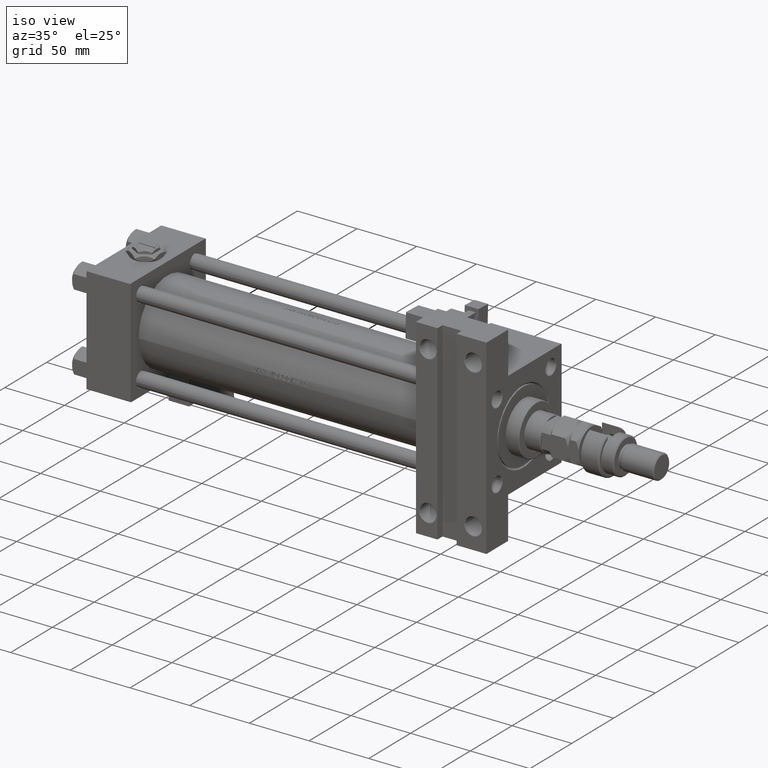
[diagram: clean part render]
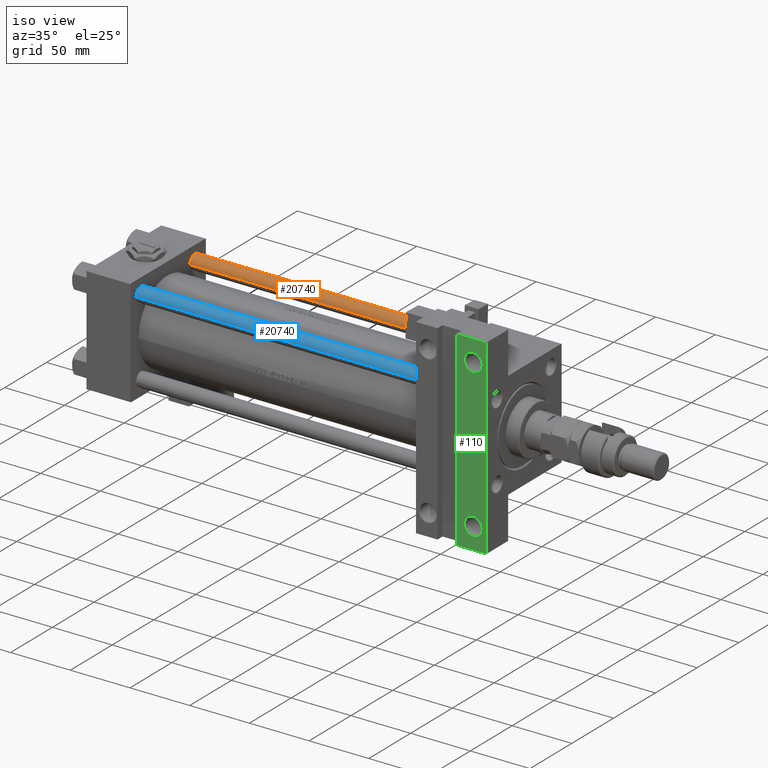
[diagram: same view with three faces highlighted in distinct colors, each labeled with its STEP entity id]
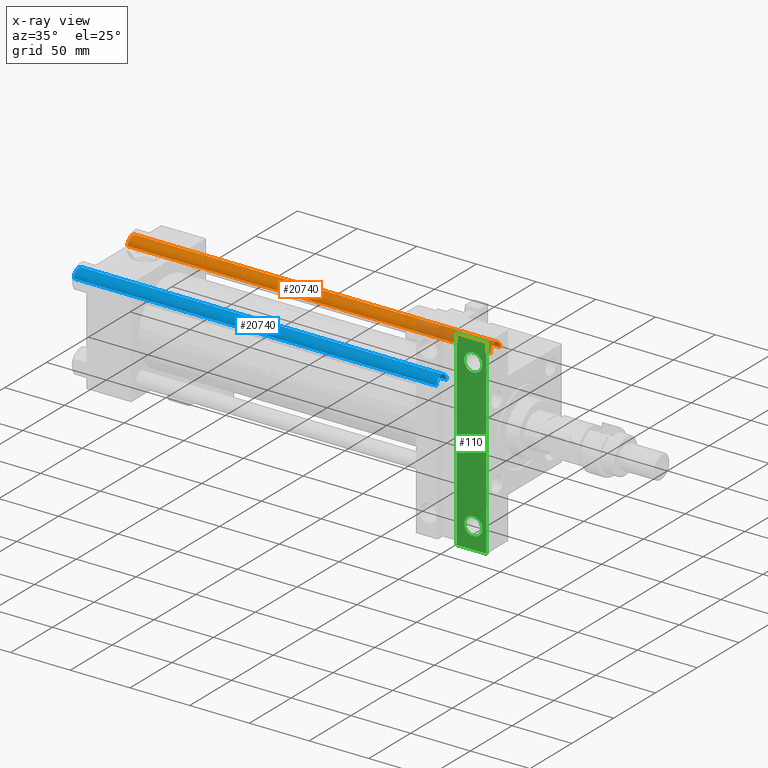
[diagram: x-ray of the same camera — body ghosted, the three highlighted faces saturated]
A machine part, iso view with three faces highlighted in distinct colors.
The next image is the same camera in x-ray (body ghosted, the three faces saturated) — at least one of them is partly hidden behind the body in this view.
Their STEP definitions:

[orange] entity #20740 — the highlighted cylindrical surface (edge-blend (fillet) strip) has radius 6 mm, axis along (1, -0, 0).
#1722 = LINE ( 'NONE', #40596, #24269 ) ;
#2200 = ORIENTED_EDGE ( 'NONE', *, *, #39909, .T. ) ;
#7067 = VERTEX_POINT ( 'NONE', #46702 ) ;
#8290 = LINE ( 'NONE', #11888, #33200 ) ;
#8333 = FACE_OUTER_BOUND ( 'NONE', #25687, .T. ) ;
#11888 = CARTESIAN_POINT ( 'NONE',  ( 6.000000000000000888, 7.347880794884120722E-16, 305.0000000000000000 ) ) ;
#12722 = CARTESIAN_POINT ( 'NONE',  ( -6.000000000000000888, 0.000000000000000000, 304.5000000000000000 ) ) ;
#13773 = DIRECTION ( 'NONE',  ( -1.000000000000000000, 0.000000000000000000, 0.000000000000000000 ) ) ;
#14417 = VERTEX_POINT ( 'NONE', #33110 ) ;
#18293 = EDGE_CURVE ( 'NONE', #24531, #7067, #1722, .T. ) ;
#20187 = DIRECTION ( 'NONE',  ( -0.000000000000000000, -0.000000000000000000, -1.000000000000000000 ) ) ;
#20740 = ADVANCED_FACE ( 'NONE', ( #8333 ), #25179, .T. ) ;
#22438 = EDGE_CURVE ( 'NONE', #37914, #14417, #8290, .T. ) ;
#23485 = AXIS2_PLACEMENT_3D ( 'NONE', #51491, #34738, #13773 ) ;
#23966 = DIRECTION ( 'NONE',  ( 1.000000000000000000, 0.000000000000000000, 0.000000000000000000 ) ) ;
#24269 = VECTOR ( 'NONE', #52143, 1000.000000000000000 ) ;
#24531 = VERTEX_POINT ( 'NONE', #12722 ) ;
#25179 = CYLINDRICAL_SURFACE ( 'NONE', #23485, 6.000000000000000888 ) ;
#25687 = EDGE_LOOP ( 'NONE', ( #42523, #2200, #43676, #36733 ) ) ;
#27273 = DIRECTION ( 'NONE',  ( -0.000000000000000000, -0.000000000000000000, 1.000000000000000000 ) ) ;
#29643 = EDGE_CURVE ( 'NONE', #7067, #14417, #40584, .T. ) ;
#33110 = CARTESIAN_POINT ( 'NONE',  ( 6.000000000000000888, 7.347880794884120722E-16, 0.5000000000000004441 ) ) ;
#33200 = VECTOR ( 'NONE', #20187, 1000.000000000000000 ) ;
#34657 = CIRCLE ( 'NONE', #36435, 6.000000000000000888 ) ;
#34738 = DIRECTION ( 'NONE',  ( -0.000000000000000000, -0.000000000000000000, -1.000000000000000000 ) ) ;
#36435 = AXIS2_PLACEMENT_3D ( 'NONE', #47934, #53132, #23966 ) ;
#36733 = ORIENTED_EDGE ( 'NONE', *, *, #29643, .T. ) ;
#37745 = CARTESIAN_POINT ( 'NONE',  ( 6.000000000000000888, 7.347880794884120722E-16, 304.5000000000000000 ) ) ;
#37914 = VERTEX_POINT ( 'NONE', #37745 ) ;
#39909 = EDGE_CURVE ( 'NONE', #37914, #24531, #34657, .T. ) ;
#40584 = CIRCLE ( 'NONE', #41436, 6.000000000000000888 ) ;
#40596 = CARTESIAN_POINT ( 'NONE',  ( -6.000000000000000888, 0.000000000000000000, 305.0000000000000000 ) ) ;
#41436 = AXIS2_PLACEMENT_3D ( 'NONE', #52847, #27273, #48191 ) ;
#42523 = ORIENTED_EDGE ( 'NONE', *, *, #22438, .F. ) ;
#43676 = ORIENTED_EDGE ( 'NONE', *, *, #18293, .T. ) ;
#46702 = CARTESIAN_POINT ( 'NONE',  ( -6.000000000000000888, 0.000000000000000000, 0.5000000000000004441 ) ) ;
#47934 = CARTESIAN_POINT ( 'NONE',  ( 0.000000000000000000, 0.000000000000000000, 304.5000000000000000 ) ) ;
#48191 = DIRECTION ( 'NONE',  ( 1.000000000000000000, 0.000000000000000000, 0.000000000000000000 ) ) ;
#51491 = CARTESIAN_POINT ( 'NONE',  ( 0.000000000000000000, 0.000000000000000000, 305.0000000000000000 ) ) ;
#52143 = DIRECTION ( 'NONE',  ( -0.000000000000000000, -0.000000000000000000, -1.000000000000000000 ) ) ;
#52847 = CARTESIAN_POINT ( 'NONE',  ( 0.000000000000000000, 0.000000000000000000, 0.5000000000000004441 ) ) ;
#53132 = DIRECTION ( 'NONE',  ( 0.000000000000000000, 0.000000000000000000, -1.000000000000000000 ) ) ;

[blue] entity #20740 — the highlighted cylindrical surface (edge-blend (fillet) strip) has radius 6 mm, axis along (-1, 0, 0).
#1722 = LINE ( 'NONE', #40596, #24269 ) ;
#2200 = ORIENTED_EDGE ( 'NONE', *, *, #39909, .T. ) ;
#7067 = VERTEX_POINT ( 'NONE', #46702 ) ;
#8290 = LINE ( 'NONE', #11888, #33200 ) ;
#8333 = FACE_OUTER_BOUND ( 'NONE', #25687, .T. ) ;
#11888 = CARTESIAN_POINT ( 'NONE',  ( 6.000000000000000888, 7.347880794884120722E-16, 305.0000000000000000 ) ) ;
#12722 = CARTESIAN_POINT ( 'NONE',  ( -6.000000000000000888, 0.000000000000000000, 304.5000000000000000 ) ) ;
#13773 = DIRECTION ( 'NONE',  ( -1.000000000000000000, 0.000000000000000000, 0.000000000000000000 ) ) ;
#14417 = VERTEX_POINT ( 'NONE', #33110 ) ;
#18293 = EDGE_CURVE ( 'NONE', #24531, #7067, #1722, .T. ) ;
#20187 = DIRECTION ( 'NONE',  ( -0.000000000000000000, -0.000000000000000000, -1.000000000000000000 ) ) ;
#20740 = ADVANCED_FACE ( 'NONE', ( #8333 ), #25179, .T. ) ;
#22438 = EDGE_CURVE ( 'NONE', #37914, #14417, #8290, .T. ) ;
#23485 = AXIS2_PLACEMENT_3D ( 'NONE', #51491, #34738, #13773 ) ;
#23966 = DIRECTION ( 'NONE',  ( 1.000000000000000000, 0.000000000000000000, 0.000000000000000000 ) ) ;
#24269 = VECTOR ( 'NONE', #52143, 1000.000000000000000 ) ;
#24531 = VERTEX_POINT ( 'NONE', #12722 ) ;
#25179 = CYLINDRICAL_SURFACE ( 'NONE', #23485, 6.000000000000000888 ) ;
#25687 = EDGE_LOOP ( 'NONE', ( #42523, #2200, #43676, #36733 ) ) ;
#27273 = DIRECTION ( 'NONE',  ( -0.000000000000000000, -0.000000000000000000, 1.000000000000000000 ) ) ;
#29643 = EDGE_CURVE ( 'NONE', #7067, #14417, #40584, .T. ) ;
#33110 = CARTESIAN_POINT ( 'NONE',  ( 6.000000000000000888, 7.347880794884120722E-16, 0.5000000000000004441 ) ) ;
#33200 = VECTOR ( 'NONE', #20187, 1000.000000000000000 ) ;
#34657 = CIRCLE ( 'NONE', #36435, 6.000000000000000888 ) ;
#34738 = DIRECTION ( 'NONE',  ( -0.000000000000000000, -0.000000000000000000, -1.000000000000000000 ) ) ;
#36435 = AXIS2_PLACEMENT_3D ( 'NONE', #47934, #53132, #23966 ) ;
#36733 = ORIENTED_EDGE ( 'NONE', *, *, #29643, .T. ) ;
#37745 = CARTESIAN_POINT ( 'NONE',  ( 6.000000000000000888, 7.347880794884120722E-16, 304.5000000000000000 ) ) ;
#37914 = VERTEX_POINT ( 'NONE', #37745 ) ;
#39909 = EDGE_CURVE ( 'NONE', #37914, #24531, #34657, .T. ) ;
#40584 = CIRCLE ( 'NONE', #41436, 6.000000000000000888 ) ;
#40596 = CARTESIAN_POINT ( 'NONE',  ( -6.000000000000000888, 0.000000000000000000, 305.0000000000000000 ) ) ;
#41436 = AXIS2_PLACEMENT_3D ( 'NONE', #52847, #27273, #48191 ) ;
#42523 = ORIENTED_EDGE ( 'NONE', *, *, #22438, .F. ) ;
#43676 = ORIENTED_EDGE ( 'NONE', *, *, #18293, .T. ) ;
#46702 = CARTESIAN_POINT ( 'NONE',  ( -6.000000000000000888, 0.000000000000000000, 0.5000000000000004441 ) ) ;
#47934 = CARTESIAN_POINT ( 'NONE',  ( 0.000000000000000000, 0.000000000000000000, 304.5000000000000000 ) ) ;
#48191 = DIRECTION ( 'NONE',  ( 1.000000000000000000, 0.000000000000000000, 0.000000000000000000 ) ) ;
#51491 = CARTESIAN_POINT ( 'NONE',  ( 0.000000000000000000, 0.000000000000000000, 305.0000000000000000 ) ) ;
#52143 = DIRECTION ( 'NONE',  ( -0.000000000000000000, -0.000000000000000000, -1.000000000000000000 ) ) ;
#52847 = CARTESIAN_POINT ( 'NONE',  ( 0.000000000000000000, 0.000000000000000000, 0.5000000000000004441 ) ) ;
#53132 = DIRECTION ( 'NONE',  ( 0.000000000000000000, 0.000000000000000000, -1.000000000000000000 ) ) ;

[green] entity #110 — the highlighted planar face has unit normal (0, -1, 0).
#110 = ADVANCED_FACE ( 'NONE', ( #44805, #15595, #14772 ), #32438, .T. ) ;
#350 = ORIENTED_EDGE ( 'NONE', *, *, #19536, .T. ) ;
#466 = CARTESIAN_POINT ( 'NONE',  ( 309.9999999999999432, 79.99999999999995737, -45.00000000000000000 ) ) ;
#855 = CARTESIAN_POINT ( 'NONE',  ( 323.9999999999999432, 62.00000000000000000, -45.00000000000000000 ) ) ;
#954 = CARTESIAN_POINT ( 'NONE',  ( 309.9999999999999432, -79.99999999999995737, -45.00000000000000000 ) ) ;
#1001 = LINE ( 'NONE', #47846, #11646 ) ;
#1770 = VERTEX_POINT ( 'NONE', #5295 ) ;
#2232 = CIRCLE ( 'NONE', #12826, 7.499499999999992284 ) ;
#2350 = DIRECTION ( 'NONE',  ( 0.000000000000000000, 0.000000000000000000, -1.000000000000000000 ) ) ;
#2447 = ORIENTED_EDGE ( 'NONE', *, *, #6817, .T. ) ;
#3354 = DIRECTION ( 'NONE',  ( -0.000000000000000000, -0.000000000000000000, 1.000000000000000000 ) ) ;
#3888 = CARTESIAN_POINT ( 'NONE',  ( 323.9999999999999432, -62.00000000000000000, -45.00000000000000000 ) ) ;
#5295 = CARTESIAN_POINT ( 'NONE',  ( 309.9999999999999432, -79.99999999999995737, -45.00000000000000000 ) ) ;
#5531 = VERTEX_POINT ( 'NONE', #466 ) ;
#6817 = EDGE_CURVE ( 'NONE', #5531, #54052, #1001, .T. ) ;
#6878 = LINE ( 'NONE', #52616, #32930 ) ;
#7608 = EDGE_LOOP ( 'NONE', ( #35206, #2447, #17341, #10852 ) ) ;
#8269 = AXIS2_PLACEMENT_3D ( 'NONE', #23617, #2350, #49206 ) ;
#8677 = LINE ( 'NONE', #954, #22004 ) ;
#10163 = ORIENTED_EDGE ( 'NONE', *, *, #10864, .T. ) ;
#10756 = CARTESIAN_POINT ( 'NONE',  ( 323.9999999999999432, -62.00000000000000000, -45.00000000000000000 ) ) ;
#10852 = ORIENTED_EDGE ( 'NONE', *, *, #24160, .T. ) ;
#10864 = EDGE_CURVE ( 'NONE', #36577, #18783, #53831, .T. ) ;
#11016 = DIRECTION ( 'NONE',  ( 0.000000000000000000, -1.000000000000000000, 0.000000000000000000 ) ) ;
#11646 = VECTOR ( 'NONE', #26390, 1000.000000000000000 ) ;
#12826 = AXIS2_PLACEMENT_3D ( 'NONE', #3888, #3354, #33961 ) ;
#12871 = EDGE_CURVE ( 'NONE', #54052, #39152, #6878, .T. ) ;
#14697 = DIRECTION ( 'NONE',  ( -0.000000000000000000, -0.000000000000000000, 1.000000000000000000 ) ) ;
#14772 = FACE_BOUND ( 'NONE', #43325, .T. ) ;
#14790 = VECTOR ( 'NONE', #40397, 1000.000000000000000 ) ;
#15595 = FACE_BOUND ( 'NONE', #43432, .T. ) ;
#17341 = ORIENTED_EDGE ( 'NONE', *, *, #12871, .T. ) ;
#17595 = CARTESIAN_POINT ( 'NONE',  ( 331.4994999999999550, -62.00000000000000000, -45.00000000000000000 ) ) ;
#18783 = VERTEX_POINT ( 'NONE', #41342 ) ;
#19352 = EDGE_CURVE ( 'NONE', #43538, #25851, #2232, .T. ) ;
#19536 = EDGE_CURVE ( 'NONE', #18783, #36577, #49759, .T. ) ;
#19998 = CARTESIAN_POINT ( 'NONE',  ( 275.9999999999999432, -80.00000000000001421, -45.00000000000000000 ) ) ;
#22004 = VECTOR ( 'NONE', #38189, 1000.000000000000000 ) ;
#23480 = DIRECTION ( 'NONE',  ( -1.000000000000000000, 0.000000000000000000, 0.000000000000000000 ) ) ;
#23617 = CARTESIAN_POINT ( 'NONE',  ( 334.9999999999999432, 45.00000000000001421, -45.00000000000000000 ) ) ;
#24140 = LINE ( 'NONE', #19998, #14790 ) ;
#24160 = EDGE_CURVE ( 'NONE', #39152, #1770, #24140, .T. ) ;
#25851 = VERTEX_POINT ( 'NONE', #50937 ) ;
#26390 = DIRECTION ( 'NONE',  ( 1.000000000000000000, 4.704334850106595794E-16, 0.000000000000000000 ) ) ;
#26887 = CARTESIAN_POINT ( 'NONE',  ( 334.9999999999999432, -80.00000000000004263, -45.00000000000000000 ) ) ;
#27602 = DIRECTION ( 'NONE',  ( -0.000000000000000000, -0.000000000000000000, 1.000000000000000000 ) ) ;
#29140 = AXIS2_PLACEMENT_3D ( 'NONE', #10756, #27602, #23480 ) ;
#30126 = AXIS2_PLACEMENT_3D ( 'NONE', #40054, #14697, #38973 ) ;
#30870 = CIRCLE ( 'NONE', #29140, 7.499499999999992284 ) ;
#31127 = EDGE_CURVE ( 'NONE', #5531, #1770, #8677, .T. ) ;
#32438 = PLANE ( 'NONE',  #8269 ) ;
#32638 = EDGE_CURVE ( 'NONE', #25851, #43538, #30870, .T. ) ;
#32930 = VECTOR ( 'NONE', #11016, 1000.000000000000000 ) ;
#33961 = DIRECTION ( 'NONE',  ( -1.000000000000000000, 0.000000000000000000, 0.000000000000000000 ) ) ;
#34513 = DIRECTION ( 'NONE',  ( -1.000000000000000000, 0.000000000000000000, 0.000000000000000000 ) ) ;
#34853 = AXIS2_PLACEMENT_3D ( 'NONE', #855, #46875, #34513 ) ;
#35206 = ORIENTED_EDGE ( 'NONE', *, *, #31127, .F. ) ;
#36577 = VERTEX_POINT ( 'NONE', #50708 ) ;
#38072 = ORIENTED_EDGE ( 'NONE', *, *, #32638, .T. ) ;
#38189 = DIRECTION ( 'NONE',  ( -0.000000000000000000, -1.000000000000000000, -0.000000000000000000 ) ) ;
#38973 = DIRECTION ( 'NONE',  ( -1.000000000000000000, 0.000000000000000000, 0.000000000000000000 ) ) ;
#39152 = VERTEX_POINT ( 'NONE', #26887 ) ;
#40054 = CARTESIAN_POINT ( 'NONE',  ( 323.9999999999999432, 62.00000000000000000, -45.00000000000000000 ) ) ;
#40397 = DIRECTION ( 'NONE',  ( -1.000000000000000000, 4.704334850106595794E-16, -0.000000000000000000 ) ) ;
#41342 = CARTESIAN_POINT ( 'NONE',  ( 316.5004999999999882, 62.00000000000000000, -45.00000000000000000 ) ) ;
#43325 = EDGE_LOOP ( 'NONE', ( #350, #10163 ) ) ;
#43432 = EDGE_LOOP ( 'NONE', ( #38072, #45028 ) ) ;
#43538 = VERTEX_POINT ( 'NONE', #17595 ) ;
#44805 = FACE_OUTER_BOUND ( 'NONE', #7608, .T. ) ;
#45028 = ORIENTED_EDGE ( 'NONE', *, *, #19352, .T. ) ;
#46875 = DIRECTION ( 'NONE',  ( -0.000000000000000000, -0.000000000000000000, 1.000000000000000000 ) ) ;
#47846 = CARTESIAN_POINT ( 'NONE',  ( 275.9999999999999432, 79.99999999999995737, -45.00000000000000000 ) ) ;
#49206 = DIRECTION ( 'NONE',  ( -1.000000000000000000, 0.000000000000000000, -0.000000000000000000 ) ) ;
#49759 = CIRCLE ( 'NONE', #34853, 7.499499999999992284 ) ;
#50708 = CARTESIAN_POINT ( 'NONE',  ( 331.4994999999999550, 62.00000000000000000, -45.00000000000000000 ) ) ;
#50937 = CARTESIAN_POINT ( 'NONE',  ( 316.5004999999999882, -62.00000000000000000, -45.00000000000000000 ) ) ;
#52616 = CARTESIAN_POINT ( 'NONE',  ( 334.9999999999999432, 45.00000000000001421, -45.00000000000000000 ) ) ;
#53559 = CARTESIAN_POINT ( 'NONE',  ( 334.9999999999999432, 79.99999999999998579, -45.00000000000000000 ) ) ;
#53831 = CIRCLE ( 'NONE', #30126, 7.499499999999992284 ) ;
#54052 = VERTEX_POINT ( 'NONE', #53559 ) ;